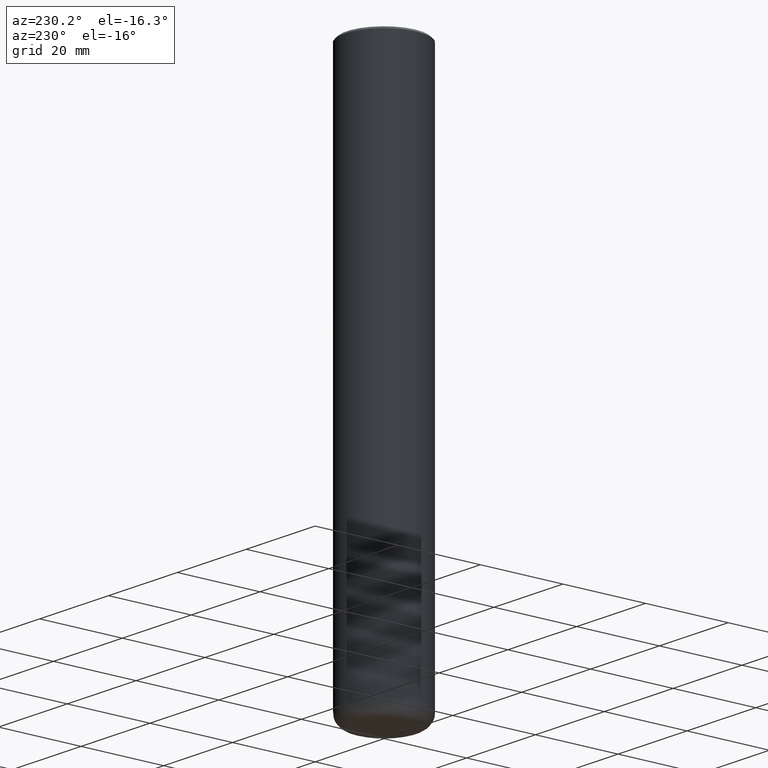
[diagram: clean part render]
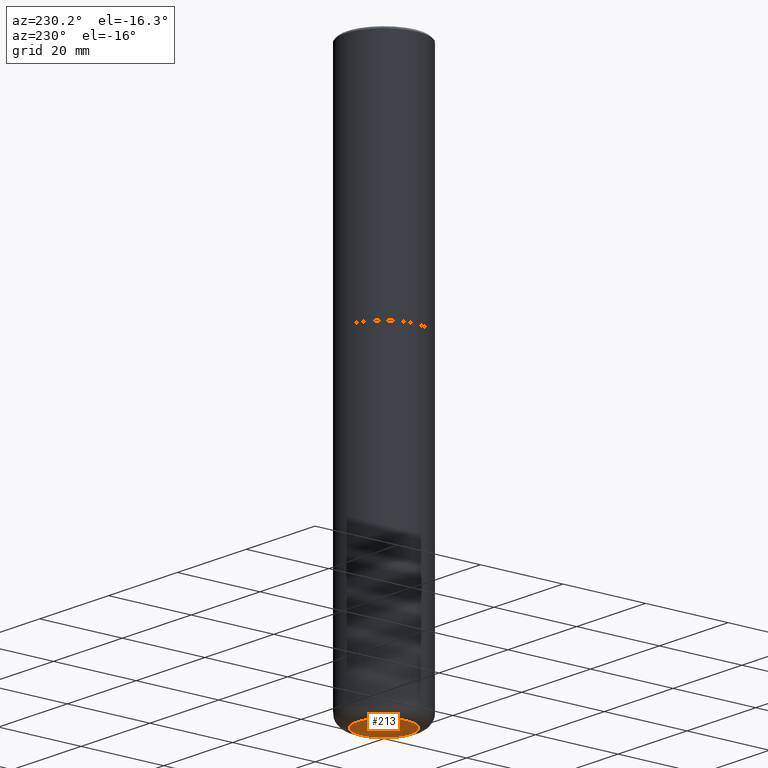
[diagram: same view with one face highlighted and labeled with its STEP entity id]
A machine part, auxiliary view. The second image highlights one B-rep face of the part: STEP entity #213.
In plain terms, the highlighted planar face has unit normal (0, -0, -1).
Its self-contained STEP definition (entity closure, byte-faithful):
#35 = DIRECTION ( 'NONE',  ( -2.445468806185136597E-29, 3.491481338843145583E-15, 1.000000000000000000 ) ) ;
#48 = CIRCLE ( 'NONE', #374, 0.2550000000000000044 ) ;
#86 = DIRECTION ( 'NONE',  ( -2.445468806185136597E-29, 3.491481338843145583E-15, 1.000000000000000000 ) ) ;
#98 = PLANE ( 'NONE',  #310 ) ;
#111 = CARTESIAN_POINT ( 'NONE',  ( -0.2550000000000000044, -1.588257853095161128E-14, -5.249999999999999112 ) ) ;
#137 = DIRECTION ( 'NONE',  ( 1.000000000000000000, -6.982962677686260400E-15, 0.000000000000000000 ) ) ;
#138 = ORIENTED_EDGE ( 'NONE', *, *, #412, .F. ) ;
#163 = CARTESIAN_POINT ( 'NONE',  ( 0.2550000000000000044, -2.011093251173650682E-14, -5.249999999999999112 ) ) ;
#189 = DIRECTION ( 'NONE',  ( 2.438088387897960049E-29, -3.491481338843145188E-15, -1.000000000000000000 ) ) ;
#213 = ADVANCED_FACE ( 'NONE', ( #392 ), #98, .T. ) ;
#226 = CARTESIAN_POINT ( 'NONE',  ( 2.854868159318815822E-28, 4.167294683602726042E-15, -5.249999999999999112 ) ) ;
#227 = CARTESIAN_POINT ( 'NONE',  ( 1.283871123247196489E-28, -1.833027702892651007E-14, -5.249999999999999112 ) ) ;
#240 = DIRECTION ( 'NONE',  ( 1.000000000000000000, -6.982962677686260400E-15, 0.000000000000000000 ) ) ;
#251 = VERTEX_POINT ( 'NONE', #163 ) ;
#291 = DIRECTION ( 'NONE',  ( -1.000000000000000000, 6.982962677686265922E-15, -4.876176775795935793E-29 ) ) ;
#303 = EDGE_CURVE ( 'NONE', #354, #251, #355, .T. ) ;
#310 = AXIS2_PLACEMENT_3D ( 'NONE', #226, #189, #291 ) ;
#311 = ORIENTED_EDGE ( 'NONE', *, *, #303, .F. ) ;
#322 = AXIS2_PLACEMENT_3D ( 'NONE', #227, #35, #137 ) ;
#337 = CARTESIAN_POINT ( 'NONE',  ( 1.283871123247196489E-28, -1.833027702892651007E-14, -5.249999999999999112 ) ) ;
#347 = EDGE_LOOP ( 'NONE', ( #138, #311 ) ) ;
#354 = VERTEX_POINT ( 'NONE', #111 ) ;
#355 = CIRCLE ( 'NONE', #322, 0.2550000000000000044 ) ;
#374 = AXIS2_PLACEMENT_3D ( 'NONE', #337, #86, #240 ) ;
#392 = FACE_OUTER_BOUND ( 'NONE', #347, .T. ) ;
#412 = EDGE_CURVE ( 'NONE', #251, #354, #48, .T. ) ;